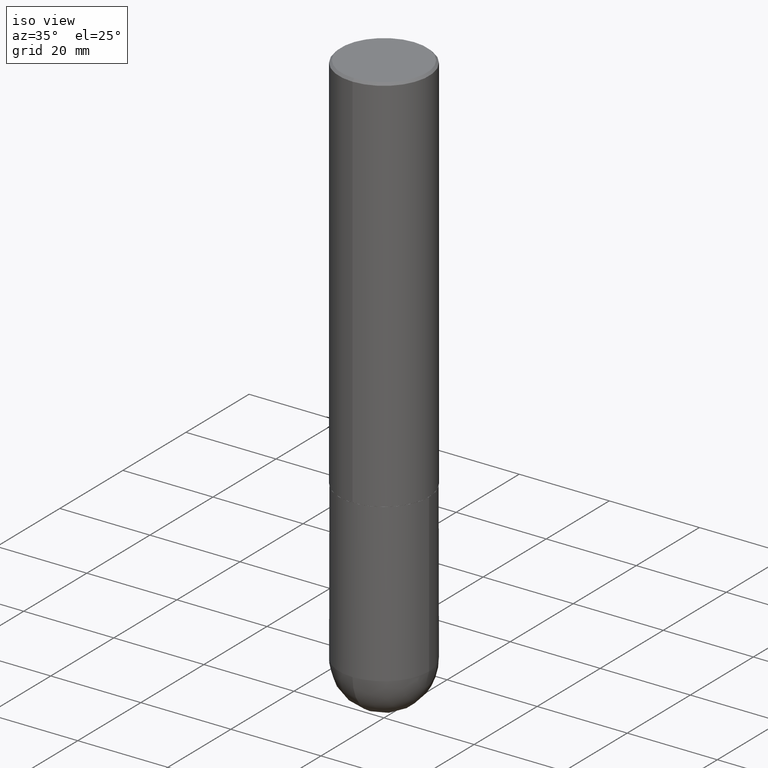
[diagram: clean part render]
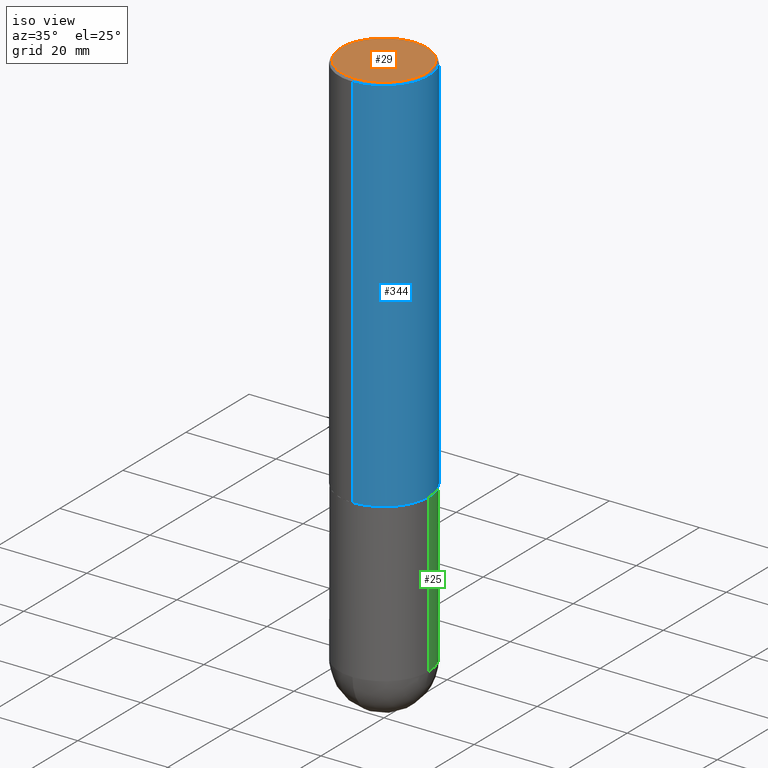
[diagram: same view with three faces highlighted in distinct colors, each labeled with its STEP entity id]
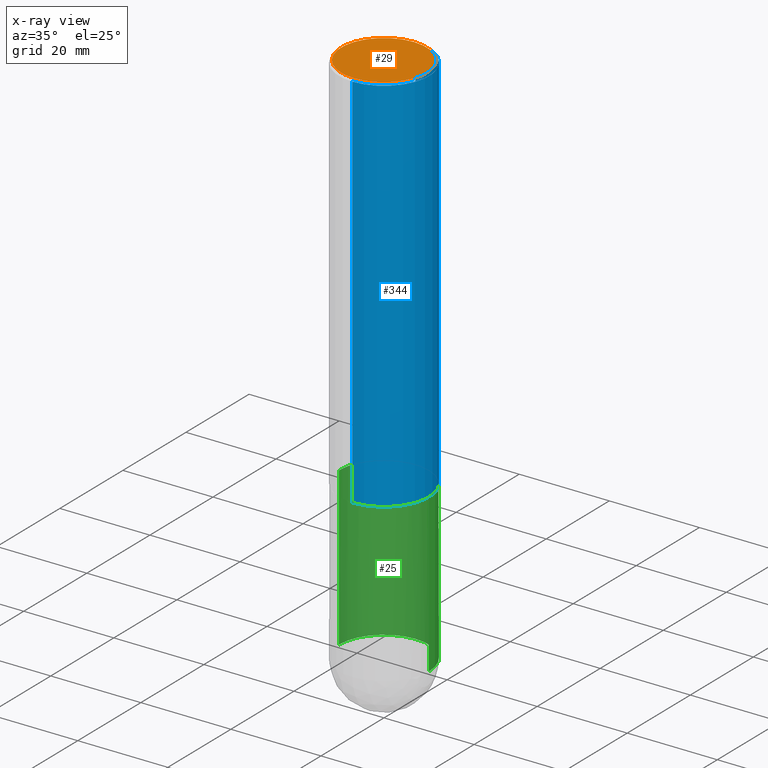
[diagram: x-ray of the same camera — body ghosted, the three highlighted faces saturated]
A machine part, iso view with three faces highlighted in distinct colors.
The next image is the same camera in x-ray (body ghosted, the three faces saturated) — at least one of them is partly hidden behind the body in this view.
Their STEP definitions:

[orange] entity #29 — the highlighted planar face has unit normal (0, -0, -1).
#16 = PLANE ( 'NONE',  #232 ) ;
#26 = ORIENTED_EDGE ( 'NONE', *, *, #145, .T. ) ;
#29 = ADVANCED_FACE ( 'NONE', ( #163 ), #16, .F. ) ;
#106 = CIRCLE ( 'NONE', #310, 0.3736999999999999211 ) ;
#115 = DIRECTION ( 'NONE',  ( -2.446881955452705196E-29, 3.489457628660526153E-15, 1.000000000000000000 ) ) ;
#125 = CARTESIAN_POINT ( 'NONE',  ( 2.609533152651356620E-15, 0.3736999999999999211, -1.255300552441906118E-15 ) ) ;
#130 = DIRECTION ( 'NONE',  ( -2.446881955452705196E-29, 3.489457628660526153E-15, 1.000000000000000000 ) ) ;
#145 = EDGE_CURVE ( 'NONE', #389, #176, #329, .T. ) ;
#163 = FACE_OUTER_BOUND ( 'NONE', #295, .T. ) ;
#170 = DIRECTION ( 'NONE',  ( -6.982962677686265133E-15, -1.000000000000000000, 3.489457628660525758E-15 ) ) ;
#175 = AXIS2_PLACEMENT_3D ( 'NONE', #241, #115, #245 ) ;
#176 = VERTEX_POINT ( 'NONE', #312 ) ;
#187 = EDGE_CURVE ( 'NONE', #176, #389, #106, .T. ) ;
#189 = CARTESIAN_POINT ( 'NONE',  ( 2.679362779428219918E-15, 0.3736999999999999211, -1.206590789053373624E-15 ) ) ;
#190 = DIRECTION ( 'NONE',  ( 6.982962677686265922E-15, 1.000000000000000000, -3.489457628660526153E-15 ) ) ;
#193 = ORIENTED_EDGE ( 'NONE', *, *, #187, .T. ) ;
#232 = AXIS2_PLACEMENT_3D ( 'NONE', #125, #288, #190 ) ;
#241 = CARTESIAN_POINT ( 'NONE',  ( -2.383740821795408192E-45, 3.399413108927262571E-31, 9.741952677706454540E-17 ) ) ;
#245 = DIRECTION ( 'NONE',  ( -6.982962677686265133E-15, -1.000000000000000000, 3.489457628660525758E-15 ) ) ;
#288 = DIRECTION ( 'NONE',  ( 2.446881955452704915E-29, -3.489457628660526153E-15, -1.000000000000000000 ) ) ;
#295 = EDGE_LOOP ( 'NONE', ( #26, #193 ) ) ;
#310 = AXIS2_PLACEMENT_3D ( 'NONE', #347, #130, #170 ) ;
#312 = CARTESIAN_POINT ( 'NONE',  ( -2.632373081744935921E-15, -0.3736999999999999211, 1.401429842607502813E-15 ) ) ;
#329 = CIRCLE ( 'NONE', #175, 0.3736999999999999211 ) ;
#347 = CARTESIAN_POINT ( 'NONE',  ( -2.383740821795408192E-45, 3.399413108927262571E-31, 9.741952677706454540E-17 ) ) ;
#389 = VERTEX_POINT ( 'NONE', #189 ) ;

[blue] entity #344 — the highlighted cylindrical surface (partial cylindrical patch) has radius 10 mm, axis along (-0, 0, 1).
#15 = DIRECTION ( 'NONE',  ( -6.982962677686265922E-15, -1.000000000000000000, 4.163344669033670901E-15 ) ) ;
#20 = CARTESIAN_POINT ( 'NONE',  ( 2.749192406205083217E-15, 0.3936999999999999389, -0.02000000000000146105 ) ) ;
#21 = VERTEX_POINT ( 'NONE', #367 ) ;
#33 = DIRECTION ( 'NONE',  ( -6.982962677686265922E-15, -1.000000000000000000, 3.489457628660526153E-15 ) ) ;
#43 = AXIS2_PLACEMENT_3D ( 'NONE', #287, #378, #33 ) ;
#51 = CARTESIAN_POINT ( 'NONE',  ( -2.749192406205084400E-15, -0.3937000000000002164, 1.373799468403649886E-15 ) ) ;
#53 = AXIS2_PLACEMENT_3D ( 'NONE', #167, #133, #15 ) ;
#74 = VECTOR ( 'NONE', #314, 39.37007874015748143 ) ;
#86 = AXIS2_PLACEMENT_3D ( 'NONE', #372, #214, #317 ) ;
#93 = CYLINDRICAL_SURFACE ( 'NONE', #43, 0.3937000000000002164 ) ;
#96 = EDGE_CURVE ( 'NONE', #264, #21, #392, .T. ) ;
#120 = ORIENTED_EDGE ( 'NONE', *, *, #258, .F. ) ;
#126 = EDGE_CURVE ( 'NONE', #264, #256, #407, .T. ) ;
#127 = EDGE_LOOP ( 'NONE', ( #206, #281, #120, #298 ) ) ;
#133 = DIRECTION ( 'NONE',  ( -2.446881955452705196E-29, 3.489457628660526153E-15, 1.000000000000000000 ) ) ;
#147 = LINE ( 'NONE', #408, #169 ) ;
#167 = CARTESIAN_POINT ( 'NONE',  ( 8.185798893771481388E-29, -1.167363155092092416E-14, -3.345400000000000151 ) ) ;
#169 = VECTOR ( 'NONE', #381, 39.37007874015748143 ) ;
#177 = FACE_OUTER_BOUND ( 'NONE', #127, .T. ) ;
#206 = ORIENTED_EDGE ( 'NONE', *, *, #126, .T. ) ;
#214 = DIRECTION ( 'NONE',  ( -2.446881955452705196E-29, 3.489457628660526153E-15, 1.000000000000000000 ) ) ;
#243 = VERTEX_POINT ( 'NONE', #20 ) ;
#248 = CARTESIAN_POINT ( 'NONE',  ( -2.749192406205003936E-15, -0.3937000000000120958, -3.345399999999998819 ) ) ;
#256 = VERTEX_POINT ( 'NONE', #399 ) ;
#258 = EDGE_CURVE ( 'NONE', #21, #243, #267, .T. ) ;
#264 = VERTEX_POINT ( 'NONE', #248 ) ;
#267 = CIRCLE ( 'NONE', #86, 0.3937000000000000499 ) ;
#277 = EDGE_CURVE ( 'NONE', #256, #243, #147, .T. ) ;
#281 = ORIENTED_EDGE ( 'NONE', *, *, #277, .T. ) ;
#287 = CARTESIAN_POINT ( 'NONE',  ( 0.000000000000000000, 0.000000000000000000, 0.000000000000000000 ) ) ;
#298 = ORIENTED_EDGE ( 'NONE', *, *, #96, .F. ) ;
#314 = DIRECTION ( 'NONE',  ( -2.446881955452705196E-29, 3.489457628660526153E-15, 1.000000000000000000 ) ) ;
#317 = DIRECTION ( 'NONE',  ( -6.982962677686265133E-15, -1.000000000000000000, 3.491137977679279424E-15 ) ) ;
#344 = ADVANCED_FACE ( 'NONE', ( #177 ), #93, .T. ) ;
#367 = CARTESIAN_POINT ( 'NONE',  ( -2.700978061722651252E-15, -0.3937000000000001054, -0.01999999999999870978 ) ) ;
#372 = CARTESIAN_POINT ( 'NONE',  ( 4.893763910905431166E-31, -6.978915257321081641E-17, -0.02000000000000008715 ) ) ;
#378 = DIRECTION ( 'NONE',  ( -2.446881955452705196E-29, 3.489457628660526153E-15, 1.000000000000000000 ) ) ;
#381 = DIRECTION ( 'NONE',  ( -2.446881955452705196E-29, 3.489457628660526153E-15, 1.000000000000000000 ) ) ;
#392 = LINE ( 'NONE', #51, #74 ) ;
#399 = CARTESIAN_POINT ( 'NONE',  ( 2.797406750687558174E-15, 0.3936999999999888367, -3.345400000000001928 ) ) ;
#407 = CIRCLE ( 'NONE', #53, 0.3937000000000004385 ) ;
#408 = CARTESIAN_POINT ( 'NONE',  ( 2.797406750687515575E-15, 0.3937000000000002164, -1.373799468403649886E-15 ) ) ;

[green] entity #25 — the highlighted cylindrical surface (partial cylindrical patch) has radius 10 mm, axis along (-0, 0, 1).
#3 = CARTESIAN_POINT ( 'NONE',  ( 1.155337282794106175E-28, -1.649515443723055925E-14, -4.724400000000000155 ) ) ;
#17 = AXIS2_PLACEMENT_3D ( 'NONE', #83, #76, #368 ) ;
#18 = LINE ( 'NONE', #343, #247 ) ;
#25 = ADVANCED_FACE ( 'NONE', ( #242 ), #81, .T. ) ;
#28 = DIRECTION ( 'NONE',  ( 1.000000000000000000, -6.982962677686265133E-15, 0.000000000000000000 ) ) ;
#34 = CIRCLE ( 'NONE', #272, 0.3936999999999999389 ) ;
#48 = DIRECTION ( 'NONE',  ( -2.445468806185136877E-29, 3.491481338843145188E-15, 1.000000000000000000 ) ) ;
#72 = VERTEX_POINT ( 'NONE', #236 ) ;
#76 = DIRECTION ( 'NONE',  ( -2.445468806185136597E-29, 3.491481338843145583E-15, 1.000000000000000000 ) ) ;
#81 = CYLINDRICAL_SURFACE ( 'NONE', #273, 0.3936999999999999389 ) ;
#83 = CARTESIAN_POINT ( 'NONE',  ( 8.183516813017942119E-29, -1.168389315230470294E-14, -3.346400000000000041 ) ) ;
#88 = CARTESIAN_POINT ( 'NONE',  ( 0.3937000000000000499, -1.443308555850978615E-14, -3.346400000000000041 ) ) ;
#119 = CARTESIAN_POINT ( 'NONE',  ( 0.3936999999999999389, -1.683871620097271747E-14, -4.724400000000000155 ) ) ;
#131 = EDGE_CURVE ( 'NONE', #338, #340, #18, .T. ) ;
#132 = CIRCLE ( 'NONE', #138, 0.3936999999999999389 ) ;
#136 = EDGE_CURVE ( 'NONE', #338, #405, #132, .T. ) ;
#138 = AXIS2_PLACEMENT_3D ( 'NONE', #208, #307, #218 ) ;
#148 = CARTESIAN_POINT ( 'NONE',  ( 2.749192406205197601E-15, 0.3936999999999834521, -4.724400000000001931 ) ) ;
#150 = CARTESIAN_POINT ( 'NONE',  ( -0.3936999999999999389, 2.797406750687513998E-15, -1.936584745033356455E-29 ) ) ;
#159 = EDGE_LOOP ( 'NONE', ( #380, #188, #337, #269, #263 ) ) ;
#179 = EDGE_CURVE ( 'NONE', #340, #72, #233, .T. ) ;
#181 = DIRECTION ( 'NONE',  ( -2.445468806185136877E-29, 3.491481338843145188E-15, 1.000000000000000000 ) ) ;
#186 = VECTOR ( 'NONE', #181, 39.37007874015748143 ) ;
#188 = ORIENTED_EDGE ( 'NONE', *, *, #315, .T. ) ;
#208 = CARTESIAN_POINT ( 'NONE',  ( 1.155337282794106175E-28, -1.649515443723055925E-14, -4.724400000000000155 ) ) ;
#215 = CARTESIAN_POINT ( 'NONE',  ( 0.000000000000000000, 0.000000000000000000, 0.000000000000000000 ) ) ;
#218 = DIRECTION ( 'NONE',  ( 1.000000000000000000, -6.982962677686265133E-15, 0.000000000000000000 ) ) ;
#220 = VERTEX_POINT ( 'NONE', #266 ) ;
#233 = CIRCLE ( 'NONE', #17, 0.3937000000000000499 ) ;
#236 = CARTESIAN_POINT ( 'NONE',  ( -0.3937000000000000499, -1.129211704408011867E-14, -3.346400000000000041 ) ) ;
#242 = FACE_OUTER_BOUND ( 'NONE', #159, .T. ) ;
#246 = DIRECTION ( 'NONE',  ( -2.445468806185136597E-29, 3.491481338843145583E-15, 1.000000000000000000 ) ) ;
#247 = VECTOR ( 'NONE', #48, 39.37007874015748143 ) ;
#263 = ORIENTED_EDGE ( 'NONE', *, *, #136, .T. ) ;
#266 = CARTESIAN_POINT ( 'NONE',  ( -0.3936999999999999389, -1.129211704408012183E-14, -4.724400000000000155 ) ) ;
#269 = ORIENTED_EDGE ( 'NONE', *, *, #131, .F. ) ;
#272 = AXIS2_PLACEMENT_3D ( 'NONE', #3, #246, #28 ) ;
#273 = AXIS2_PLACEMENT_3D ( 'NONE', #215, #318, #290 ) ;
#290 = DIRECTION ( 'NONE',  ( 1.000000000000000000, -6.982962677686266711E-15, 4.876176775795935793E-29 ) ) ;
#307 = DIRECTION ( 'NONE',  ( -2.445468806185136597E-29, 3.491481338843145583E-15, 1.000000000000000000 ) ) ;
#315 = EDGE_CURVE ( 'NONE', #220, #72, #384, .T. ) ;
#318 = DIRECTION ( 'NONE',  ( -2.445468806185136597E-29, 3.491481338843145583E-15, 1.000000000000000000 ) ) ;
#337 = ORIENTED_EDGE ( 'NONE', *, *, #179, .F. ) ;
#338 = VERTEX_POINT ( 'NONE', #119 ) ;
#340 = VERTEX_POINT ( 'NONE', #88 ) ;
#343 = CARTESIAN_POINT ( 'NONE',  ( 0.3936999999999999389, -2.749192406205082822E-15, 1.919750796630859611E-29 ) ) ;
#368 = DIRECTION ( 'NONE',  ( 1.000000000000000000, -6.982962677686267499E-15, 0.000000000000000000 ) ) ;
#380 = ORIENTED_EDGE ( 'NONE', *, *, #394, .T. ) ;
#384 = LINE ( 'NONE', #150, #186 ) ;
#394 = EDGE_CURVE ( 'NONE', #405, #220, #34, .T. ) ;
#405 = VERTEX_POINT ( 'NONE', #148 ) ;